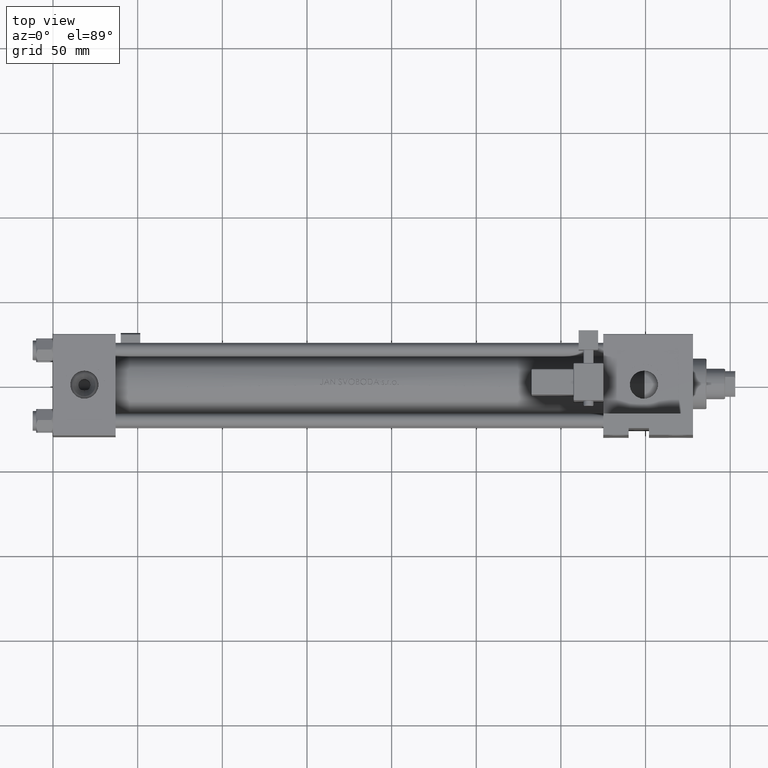
[diagram: clean part render]
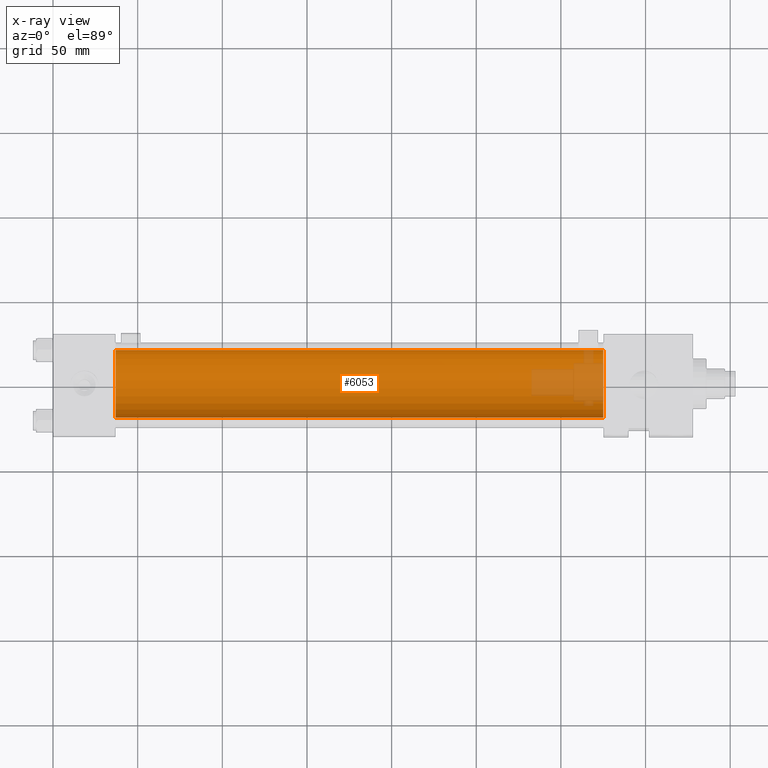
[diagram: x-ray — body ghosted, one internal face saturated and labeled with its STEP entity id]
A machine part, top view, then the same camera in x-ray: the body is ghosted and one INTERNAL B-rep face — a face not visible from any outside direction — is saturated and labeled: STEP entity #6053.
In plain terms, the highlighted cylindrical surface (edge-blend (fillet) strip) has radius 20 mm, axis along (-1, -0, 0).
Its self-contained STEP definition (entity closure, byte-faithful):
#377 = VERTEX_POINT ( 'NONE', #30527 ) ;
#818 = EDGE_CURVE ( 'NONE', #34491, #16664, #10052, .T. ) ;
#2067 = DIRECTION ( 'NONE',  ( 1.000000000000000000, 0.000000000000000000, 0.000000000000000000 ) ) ;
#2514 = VECTOR ( 'NONE', #29647, 1000.000000000000000 ) ;
#3195 = AXIS2_PLACEMENT_3D ( 'NONE', #15453, #27067, #31439 ) ;
#4661 = EDGE_CURVE ( 'NONE', #377, #25507, #26644, .T. ) ;
#5143 = DIRECTION ( 'NONE',  ( 0.000000000000000000, 0.000000000000000000, -1.000000000000000000 ) ) ;
#6053 = ADVANCED_FACE ( 'NONE', ( #38961 ), #27824, .F. ) ;
#6513 = CIRCLE ( 'NONE', #24690, 20.00000000000000000 ) ;
#10052 = LINE ( 'NONE', #36891, #2514 ) ;
#11678 = CARTESIAN_POINT ( 'NONE',  ( 324.9999999999999432, 2.326828918379970970E-15, -19.00000000000000000 ) ) ;
#15453 = CARTESIAN_POINT ( 'NONE',  ( 37.00000000000000000, -1.224646799147354686E-16, 1.000000000000000888 ) ) ;
#16197 = ORIENTED_EDGE ( 'NONE', *, *, #39378, .F. ) ;
#16664 = VERTEX_POINT ( 'NONE', #45899 ) ;
#18407 = DIRECTION ( 'NONE',  ( -1.000000000000000000, -0.000000000000000000, -0.000000000000000000 ) ) ;
#21626 = CARTESIAN_POINT ( 'NONE',  ( 324.9999999999999432, -1.224646799147354686E-16, 1.000000000000000888 ) ) ;
#22878 = CIRCLE ( 'NONE', #3195, 20.00000000000000000 ) ;
#23512 = ORIENTED_EDGE ( 'NONE', *, *, #818, .F. ) ;
#23939 = DIRECTION ( 'NONE',  ( -1.000000000000000000, -0.000000000000000000, -0.000000000000000000 ) ) ;
#24602 = ORIENTED_EDGE ( 'NONE', *, *, #4661, .T. ) ;
#24690 = AXIS2_PLACEMENT_3D ( 'NONE', #21626, #2067, #5143 ) ;
#25507 = VERTEX_POINT ( 'NONE', #34342 ) ;
#26644 = LINE ( 'NONE', #42396, #46139 ) ;
#27067 = DIRECTION ( 'NONE',  ( 1.000000000000000000, 0.000000000000000000, 0.000000000000000000 ) ) ;
#27824 = CYLINDRICAL_SURFACE ( 'NONE', #42905, 20.00000000000000000 ) ;
#29647 = DIRECTION ( 'NONE',  ( -1.000000000000000000, -0.000000000000000000, -0.000000000000000000 ) ) ;
#30527 = CARTESIAN_POINT ( 'NONE',  ( 324.9999999999999432, -1.224646799147354686E-16, 21.00000000000000000 ) ) ;
#31439 = DIRECTION ( 'NONE',  ( 0.000000000000000000, 0.000000000000000000, -1.000000000000000000 ) ) ;
#34342 = CARTESIAN_POINT ( 'NONE',  ( 37.00000000000000000, -1.224646799147354686E-16, 21.00000000000000000 ) ) ;
#34491 = VERTEX_POINT ( 'NONE', #11678 ) ;
#36891 = CARTESIAN_POINT ( 'NONE',  ( 324.9999999999999432, 2.326828918379970970E-15, -19.00000000000000000 ) ) ;
#38961 = FACE_OUTER_BOUND ( 'NONE', #46424, .T. ) ;
#39378 = EDGE_CURVE ( 'NONE', #16664, #25507, #22878, .T. ) ;
#41821 = ORIENTED_EDGE ( 'NONE', *, *, #44345, .T. ) ;
#42396 = CARTESIAN_POINT ( 'NONE',  ( 324.9999999999999432, -1.224646799147354686E-16, 21.00000000000000000 ) ) ;
#42813 = DIRECTION ( 'NONE',  ( 0.000000000000000000, 0.000000000000000000, 1.000000000000000000 ) ) ;
#42905 = AXIS2_PLACEMENT_3D ( 'NONE', #43564, #23939, #42813 ) ;
#43564 = CARTESIAN_POINT ( 'NONE',  ( 324.9999999999999432, -1.224646799147354686E-16, 1.000000000000000888 ) ) ;
#44345 = EDGE_CURVE ( 'NONE', #34491, #377, #6513, .T. ) ;
#45899 = CARTESIAN_POINT ( 'NONE',  ( 37.00000000000000000, 2.326828918379970970E-15, -19.00000000000000000 ) ) ;
#46139 = VECTOR ( 'NONE', #18407, 1000.000000000000000 ) ;
#46424 = EDGE_LOOP ( 'NONE', ( #23512, #41821, #24602, #16197 ) ) ;